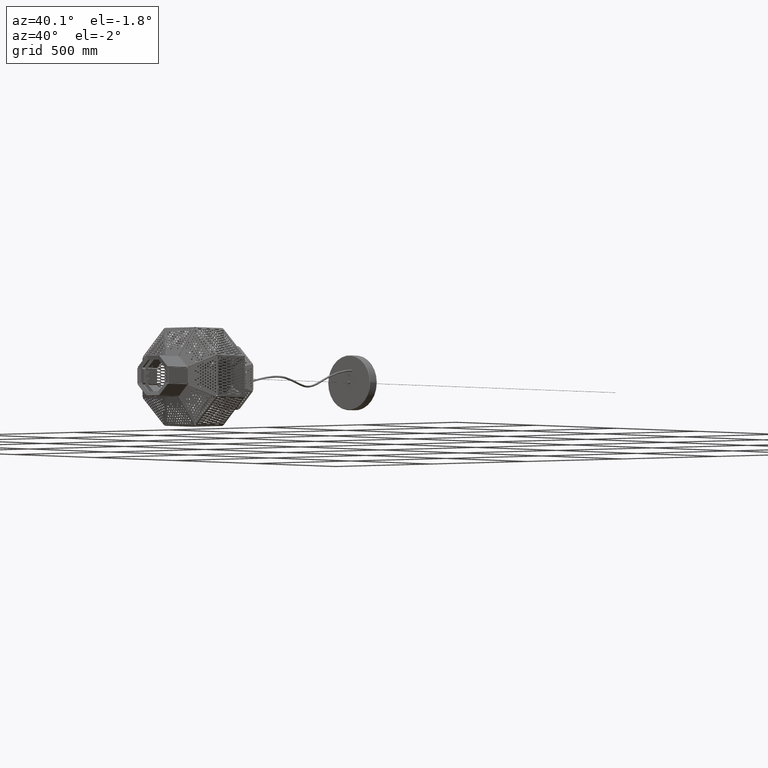
[diagram: clean part render]
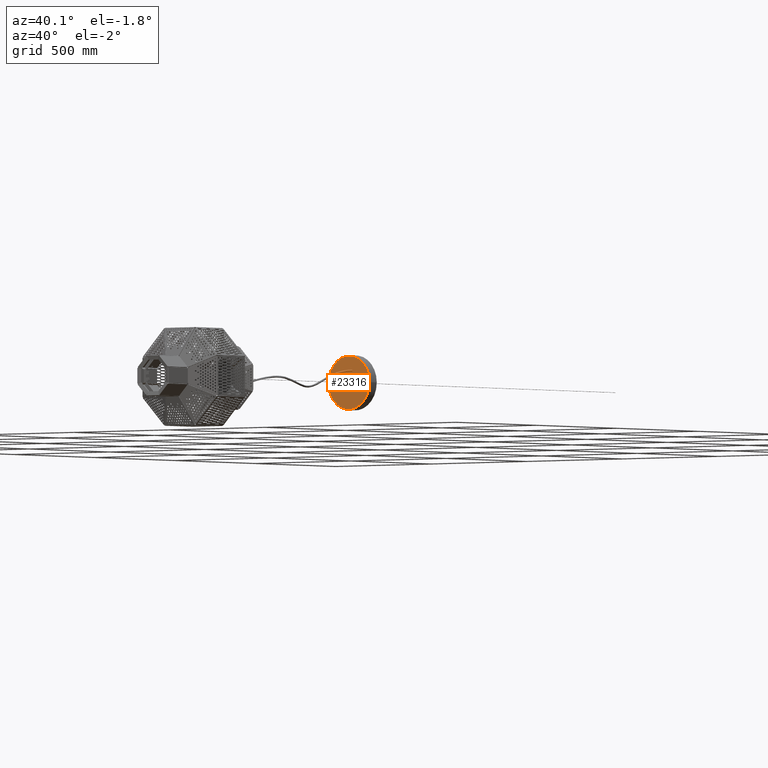
[diagram: same view with one face highlighted and labeled with its STEP entity id]
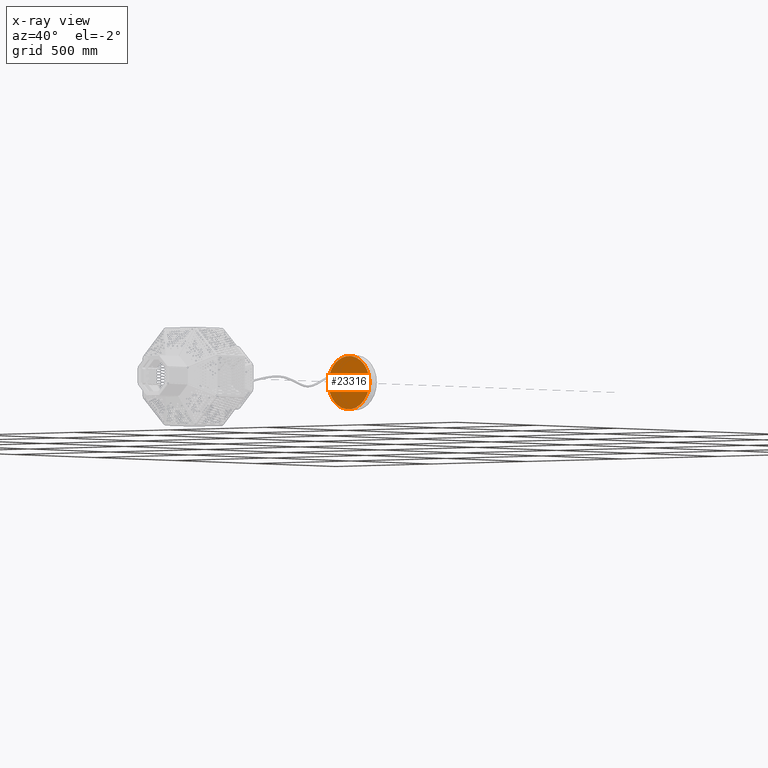
[diagram: x-ray of the same camera — body ghosted, the highlighted face saturated]
A machine part, auxiliary view. The second image highlights one B-rep face of the part: STEP entity #23316.
The next image is the same camera in x-ray: the body ghosted, the highlighted face saturated — about 0% of this face is hidden behind the body in this view.
In plain terms, the highlighted planar face has unit normal (-0, -1, -0).
Its self-contained STEP definition (entity closure, byte-faithful):
#66 = DIRECTION ( 'NONE',  ( -0.0000000000000000000, 1.000000000000000000, -0.0000000000000000000 ) ) ;
#1113 = AXIS2_PLACEMENT_3D ( 'NONE', #35545, #35346, #35144 ) ;
#2319 = CARTESIAN_POINT ( 'NONE',  ( 1.328741777074878300E-014, -1.301042606982605300E-014, -107.0000000000000000 ) ) ;
#2861 = DIRECTION ( 'NONE',  ( 0.0000000000000000000, 0.0000000000000000000, 1.000000000000000000 ) ) ;
#2925 = DIRECTION ( 'NONE',  ( -0.0000000000000000000, 1.000000000000000000, -0.0000000000000000000 ) ) ;
#3037 = CARTESIAN_POINT ( 'NONE',  ( 30.00000000000000000, -6.938893903907228400E-015, 0.0000000000000000000 ) ) ;
#3053 = AXIS2_PLACEMENT_3D ( 'NONE', #30759, #29951, #29881 ) ;
#3190 = CIRCLE ( 'NONE', #29066, 6.250000000000000900 ) ;
#4075 = DIRECTION ( 'NONE',  ( 0.0000000000000000000, 0.0000000000000000000, 1.000000000000000000 ) ) ;
#4155 = DIRECTION ( 'NONE',  ( -0.0000000000000000000, 1.000000000000000000, -0.0000000000000000000 ) ) ;
#4285 = CARTESIAN_POINT ( 'NONE',  ( 0.0000000000000000000, -6.938893903907228400E-015, 0.0000000000000000000 ) ) ;
#4311 = EDGE_CURVE ( 'NONE', #16565, #45439, #24788, .T. ) ;
#7163 = DIRECTION ( 'NONE',  ( 0.0000000000000000000, 0.0000000000000000000, 1.000000000000000000 ) ) ;
#7172 = DIRECTION ( 'NONE',  ( -0.0000000000000000000, 1.000000000000000000, -0.0000000000000000000 ) ) ;
#7233 = CARTESIAN_POINT ( 'NONE',  ( 0.0000000000000000000, -1.301042606982605300E-014, 0.0000000000000000000 ) ) ;
#8137 = EDGE_CURVE ( 'NONE', #31773, #56012, #8598, .T. ) ;
#8598 = CIRCLE ( 'NONE', #25370, 5.125000000000000000 ) ;
#9124 = VERTEX_POINT ( 'NONE', #44825 ) ;
#9776 = ORIENTED_EDGE ( 'NONE', *, *, #4311, .F. ) ;
#9977 = EDGE_CURVE ( 'NONE', #9124, #54182, #17004, .T. ) ;
#11741 = DIRECTION ( 'NONE',  ( 0.0000000000000000000, 0.0000000000000000000, 1.000000000000000000 ) ) ;
#11749 = DIRECTION ( 'NONE',  ( -0.0000000000000000000, 1.000000000000000000, -0.0000000000000000000 ) ) ;
#11784 = CARTESIAN_POINT ( 'NONE',  ( 30.00000000000000000, -6.938893903907228400E-015, 0.0000000000000000000 ) ) ;
#14867 = EDGE_LOOP ( 'NONE', ( #9776, #23384 ) ) ;
#14967 = AXIS2_PLACEMENT_3D ( 'NONE', #3037, #2925, #2861 ) ;
#15280 = FACE_OUTER_BOUND ( 'NONE', #54175, .T. ) ;
#16565 = VERTEX_POINT ( 'NONE', #29649 ) ;
#16745 = CARTESIAN_POINT ( 'NONE',  ( 30.00000000000000000, -6.938893903907228400E-015, 6.250000000000000900 ) ) ;
#17004 = CIRCLE ( 'NONE', #1113, 107.0000000000000000 ) ;
#17039 = CARTESIAN_POINT ( 'NONE',  ( 0.0000000000000000000, -6.938893903907228400E-015, -5.125000000000000000 ) ) ;
#18858 = EDGE_CURVE ( 'NONE', #54182, #9124, #25778, .T. ) ;
#21125 = ORIENTED_EDGE ( 'NONE', *, *, #9977, .T. ) ;
#23316 = ADVANCED_FACE ( 'NONE', ( #50356, #25896, #15280 ), #30143, .T. ) ;
#23384 = ORIENTED_EDGE ( 'NONE', *, *, #23977, .F. ) ;
#23977 = EDGE_CURVE ( 'NONE', #45439, #16565, #3190, .T. ) ;
#24788 = CIRCLE ( 'NONE', #14967, 6.250000000000000900 ) ;
#24923 = EDGE_CURVE ( 'NONE', #56012, #31773, #26500, .T. ) ;
#24986 = ORIENTED_EDGE ( 'NONE', *, *, #18858, .T. ) ;
#25295 = CARTESIAN_POINT ( 'NONE',  ( 6.276314845630186200E-016, -6.938893903907228400E-015, 5.125000000000000000 ) ) ;
#25370 = AXIS2_PLACEMENT_3D ( 'NONE', #4285, #4155, #4075 ) ;
#25778 = CIRCLE ( 'NONE', #34937, 107.0000000000000000 ) ;
#25896 = FACE_BOUND ( 'NONE', #34782, .T. ) ;
#26500 = CIRCLE ( 'NONE', #37949, 5.125000000000000000 ) ;
#29066 = AXIS2_PLACEMENT_3D ( 'NONE', #11784, #11749, #11741 ) ;
#29649 = CARTESIAN_POINT ( 'NONE',  ( 30.00000000000000000, -6.938893903907228400E-015, -6.250000000000000900 ) ) ;
#29881 = DIRECTION ( 'NONE',  ( 0.0000000000000000000, 0.0000000000000000000, 1.000000000000000000 ) ) ;
#29951 = DIRECTION ( 'NONE',  ( -0.0000000000000000000, 1.000000000000000000, 0.0000000000000000000 ) ) ;
#30143 = PLANE ( 'NONE',  #3053 ) ;
#30759 = CARTESIAN_POINT ( 'NONE',  ( 0.0000000000000000000, -6.505213034913026600E-015, 0.0000000000000000000 ) ) ;
#31773 = VERTEX_POINT ( 'NONE', #25295 ) ;
#32553 = CARTESIAN_POINT ( 'NONE',  ( 0.0000000000000000000, -6.938893903907228400E-015, 0.0000000000000000000 ) ) ;
#32962 = DIRECTION ( 'NONE',  ( 0.0000000000000000000, 0.0000000000000000000, 1.000000000000000000 ) ) ;
#34782 = EDGE_LOOP ( 'NONE', ( #35408, #47218 ) ) ;
#34937 = AXIS2_PLACEMENT_3D ( 'NONE', #7233, #7172, #7163 ) ;
#35144 = DIRECTION ( 'NONE',  ( 0.0000000000000000000, 0.0000000000000000000, 1.000000000000000000 ) ) ;
#35346 = DIRECTION ( 'NONE',  ( -0.0000000000000000000, 1.000000000000000000, -0.0000000000000000000 ) ) ;
#35408 = ORIENTED_EDGE ( 'NONE', *, *, #24923, .F. ) ;
#35545 = CARTESIAN_POINT ( 'NONE',  ( 0.0000000000000000000, -1.301042606982605300E-014, 0.0000000000000000000 ) ) ;
#37949 = AXIS2_PLACEMENT_3D ( 'NONE', #32553, #66, #32962 ) ;
#44825 = CARTESIAN_POINT ( 'NONE',  ( 0.0000000000000000000, -1.301042606982605300E-014, 107.0000000000000000 ) ) ;
#45439 = VERTEX_POINT ( 'NONE', #16745 ) ;
#47218 = ORIENTED_EDGE ( 'NONE', *, *, #8137, .F. ) ;
#50356 = FACE_BOUND ( 'NONE', #14867, .T. ) ;
#54175 = EDGE_LOOP ( 'NONE', ( #21125, #24986 ) ) ;
#54182 = VERTEX_POINT ( 'NONE', #2319 ) ;
#56012 = VERTEX_POINT ( 'NONE', #17039 ) ;